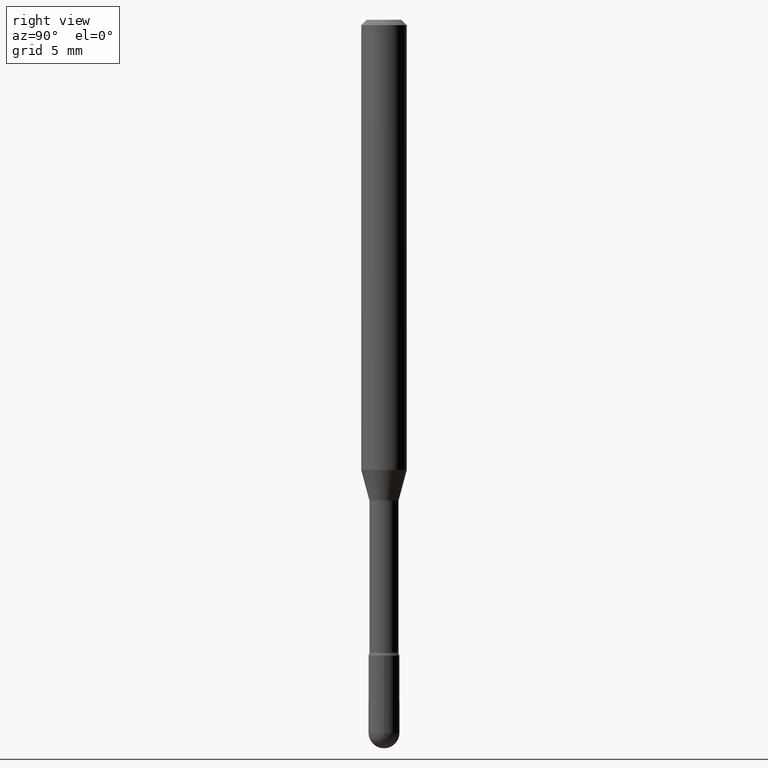
[diagram: clean part render]
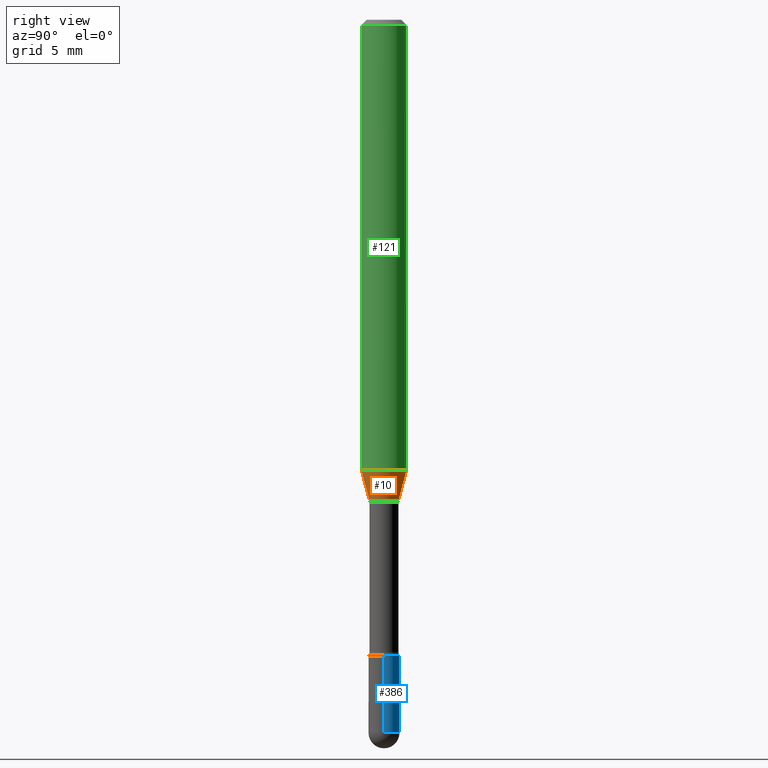
[diagram: same view with three faces highlighted in distinct colors, each labeled with its STEP entity id]
A machine part, right view with three faces highlighted in distinct colors.
Their STEP definitions:

[orange] entity #10 — the highlighted conical surface has half-angle 15 deg.
#10 = ADVANCED_FACE ( 'NONE', ( #530 ), #302, .T. ) ;
#24 = ORIENTED_EDGE ( 'NONE', *, *, #28, .T. ) ;
#28 = EDGE_CURVE ( 'NONE', #310, #143, #104, .T. ) ;
#58 = ORIENTED_EDGE ( 'NONE', *, *, #239, .T. ) ;
#60 = DIRECTION ( 'NONE',  ( -6.982962677686265922E-15, -1.000000000000000000, 4.370956789862821150E-15 ) ) ;
#75 = VERTEX_POINT ( 'NONE', #395 ) ;
#104 = LINE ( 'NONE', #314, #514 ) ;
#107 = LINE ( 'NONE', #369, #120 ) ;
#109 = AXIS2_PLACEMENT_3D ( 'NONE', #482, #231, #480 ) ;
#110 = ORIENTED_EDGE ( 'NONE', *, *, #162, .F. ) ;
#120 = VECTOR ( 'NONE', #225, 39.37007874015748143 ) ;
#143 = VERTEX_POINT ( 'NONE', #282 ) ;
#162 = EDGE_CURVE ( 'NONE', #242, #143, #558, .T. ) ;
#167 = AXIS2_PLACEMENT_3D ( 'NONE', #279, #543, #540 ) ;
#171 = EDGE_LOOP ( 'NONE', ( #58, #24, #110, #212 ) ) ;
#203 = DIRECTION ( 'NONE',  ( -2.445482093652650553E-29, 3.491462310433390042E-15, 1.000000000000000000 ) ) ;
#207 = CARTESIAN_POINT ( 'NONE',  ( 3.022230103443863054E-29, -4.314896652492206227E-15, -1.235842254289322151 ) ) ;
#212 = ORIENTED_EDGE ( 'NONE', *, *, #462, .F. ) ;
#225 = DIRECTION ( 'NONE',  ( -1.807323732225327773E-15, -0.2588190451025178529, 0.9659258262890690894 ) ) ;
#231 = DIRECTION ( 'NONE',  ( -2.445482093652650553E-29, 3.491462310433390042E-15, 1.000000000000000000 ) ) ;
#239 = EDGE_CURVE ( 'NONE', #75, #310, #407, .T. ) ;
#242 = VERTEX_POINT ( 'NONE', #330 ) ;
#279 = CARTESIAN_POINT ( 'NONE',  ( 3.223371610898601167E-29, -4.602070291655120308E-15, -1.318092501787273330 ) ) ;
#282 = CARTESIAN_POINT ( 'NONE',  ( 4.440892098500929873E-16, 0.06249999999999572564, -1.235842254289322373 ) ) ;
#302 = CONICAL_SURFACE ( 'NONE', #109, 0.04046111260566399165, 0.2617993877991499074 ) ;
#310 = VERTEX_POINT ( 'NONE', #339 ) ;
#314 = CARTESIAN_POINT ( 'NONE',  ( 2.874934964272918294E-16, 0.04046111260565939116, -1.318092501787273552 ) ) ;
#330 = CARTESIAN_POINT ( 'NONE',  ( -4.364351673553611504E-16, -0.06250000000000427436, -1.235842254289321929 ) ) ;
#339 = CARTESIAN_POINT ( 'NONE',  ( 3.657913531386922851E-16, 0.04046111260565939116, -1.318092501787273552 ) ) ;
#369 = CARTESIAN_POINT ( 'NONE',  ( -2.825384392229807714E-16, -0.04046111260566859213, -1.318092501787272885 ) ) ;
#395 = CARTESIAN_POINT ( 'NONE',  ( -2.825384392229807714E-16, -0.04046111260566859213, -1.318092501787272885 ) ) ;
#407 = CIRCLE ( 'NONE', #167, 0.04046111260566399165 ) ;
#462 = EDGE_CURVE ( 'NONE', #75, #242, #107, .T. ) ;
#480 = DIRECTION ( 'NONE',  ( -6.982962677686265922E-15, -1.000000000000000000, 6.751786635945948968E-15 ) ) ;
#482 = CARTESIAN_POINT ( 'NONE',  ( 3.223371610898601167E-29, -4.602070291655120308E-15, -1.318092501787273330 ) ) ;
#485 = DIRECTION ( 'NONE',  ( 1.839019923739597554E-15, 0.2588190451025245697, 0.9659258262890670910 ) ) ;
#486 = AXIS2_PLACEMENT_3D ( 'NONE', #207, #203, #60 ) ;
#514 = VECTOR ( 'NONE', #485, 39.37007874015748854 ) ;
#530 = FACE_OUTER_BOUND ( 'NONE', #171, .T. ) ;
#540 = DIRECTION ( 'NONE',  ( -6.982962677686265922E-15, -1.000000000000000000, 6.751786635945948968E-15 ) ) ;
#543 = DIRECTION ( 'NONE',  ( -2.445482093652650553E-29, 3.491462310433390042E-15, 1.000000000000000000 ) ) ;
#558 = CIRCLE ( 'NONE', #486, 0.06250000000000000000 ) ;

[blue] entity #386 — the highlighted cylindrical surface (edge-blend (fillet) strip) has radius 1.0795 mm, axis along (-0, 0, 1).
#16 = VERTEX_POINT ( 'NONE', #353 ) ;
#29 = EDGE_LOOP ( 'NONE', ( #255, #82, #39, #333, #557 ) ) ;
#39 = ORIENTED_EDGE ( 'NONE', *, *, #92, .F. ) ;
#72 = CARTESIAN_POINT ( 'NONE',  ( 2.967759138017140317E-16, 0.04249999999999314049, -1.957500000000000462 ) ) ;
#82 = ORIENTED_EDGE ( 'NONE', *, *, #206, .T. ) ;
#92 = EDGE_CURVE ( 'NONE', #201, #287, #415, .T. ) ;
#115 = DIRECTION ( 'NONE',  ( -2.445468806185136877E-29, 3.491481338843145188E-15, 1.000000000000000000 ) ) ;
#118 = CARTESIAN_POINT ( 'NONE',  ( 0.04249999999999999611, -6.389410850082955497E-15, -1.745000000000000107 ) ) ;
#131 = CARTESIAN_POINT ( 'NONE',  ( 0.000000000000000000, 0.000000000000000000, 0.000000000000000000 ) ) ;
#188 = EDGE_CURVE ( 'NONE', #238, #201, #544, .T. ) ;
#201 = VERTEX_POINT ( 'NONE', #118 ) ;
#206 = EDGE_CURVE ( 'NONE', #16, #287, #286, .T. ) ;
#238 = VERTEX_POINT ( 'NONE', #535 ) ;
#251 = CARTESIAN_POINT ( 'NONE',  ( -0.04249999999999999611, -6.161624165835330496E-15, -1.745000000000000107 ) ) ;
#252 = FACE_OUTER_BOUND ( 'NONE', #29, .T. ) ;
#254 = DIRECTION ( 'NONE',  ( -2.445468806185136597E-29, 3.491481338843145583E-15, 1.000000000000000000 ) ) ;
#255 = ORIENTED_EDGE ( 'NONE', *, *, #325, .T. ) ;
#286 = LINE ( 'NONE', #498, #290 ) ;
#287 = VERTEX_POINT ( 'NONE', #251 ) ;
#288 = CARTESIAN_POINT ( 'NONE',  ( 0.04250000000000000999, -2.967759138016664042E-16, 2.072375129713273202E-30 ) ) ;
#290 = VECTOR ( 'NONE', #115, 39.37007874015748143 ) ;
#297 = CARTESIAN_POINT ( 'NONE',  ( 4.787005188107404686E-29, -6.834574720785457840E-15, -1.957500000000000018 ) ) ;
#304 = DIRECTION ( 'NONE',  ( 1.000000000000000000, -6.982962677686266711E-15, 4.876176775795935793E-29 ) ) ;
#309 = DIRECTION ( 'NONE',  ( -2.445468806185136597E-29, 3.491481338843145583E-15, 1.000000000000000000 ) ) ;
#312 = CIRCLE ( 'NONE', #329, 0.04250000000000000999 ) ;
#325 = EDGE_CURVE ( 'NONE', #413, #16, #312, .T. ) ;
#329 = AXIS2_PLACEMENT_3D ( 'NONE', #297, #377, #422 ) ;
#333 = ORIENTED_EDGE ( 'NONE', *, *, #188, .F. ) ;
#336 = CYLINDRICAL_SURFACE ( 'NONE', #496, 0.04250000000000000999 ) ;
#353 = CARTESIAN_POINT ( 'NONE',  ( -0.04250000000000000999, -6.161624165835330496E-15, -1.957500000000000018 ) ) ;
#354 = CARTESIAN_POINT ( 'NONE',  ( 4.787005188107404686E-29, -6.834574720785457840E-15, -1.957500000000000018 ) ) ;
#355 = CARTESIAN_POINT ( 'NONE',  ( 4.267343066793063832E-29, -6.092634936281288846E-15, -1.745000000000000107 ) ) ;
#366 = DIRECTION ( 'NONE',  ( -2.445468806185136877E-29, 3.491481338843145188E-15, 1.000000000000000000 ) ) ;
#377 = DIRECTION ( 'NONE',  ( -2.445468806185136597E-29, 3.491481338843145583E-15, 1.000000000000000000 ) ) ;
#380 = VECTOR ( 'NONE', #366, 39.37007874015748143 ) ;
#386 = ADVANCED_FACE ( 'NONE', ( #252 ), #336, .T. ) ;
#397 = DIRECTION ( 'NONE',  ( 1.000000000000000000, -6.982962677686276177E-15, 0.000000000000000000 ) ) ;
#404 = DIRECTION ( 'NONE',  ( -2.445468806185136597E-29, 3.491481338843145583E-15, 1.000000000000000000 ) ) ;
#413 = VERTEX_POINT ( 'NONE', #72 ) ;
#415 = CIRCLE ( 'NONE', #436, 0.04249999999999999611 ) ;
#422 = DIRECTION ( 'NONE',  ( 1.000000000000000000, -6.982962677686273810E-15, 0.000000000000000000 ) ) ;
#436 = AXIS2_PLACEMENT_3D ( 'NONE', #355, #404, #397 ) ;
#472 = CIRCLE ( 'NONE', #481, 0.04250000000000000999 ) ;
#481 = AXIS2_PLACEMENT_3D ( 'NONE', #354, #309, #524 ) ;
#496 = AXIS2_PLACEMENT_3D ( 'NONE', #131, #254, #304 ) ;
#498 = CARTESIAN_POINT ( 'NONE',  ( -0.04250000000000000999, 3.019806626980426500E-16, -2.090547413358335560E-30 ) ) ;
#524 = DIRECTION ( 'NONE',  ( 1.000000000000000000, -6.982962677686273810E-15, 0.000000000000000000 ) ) ;
#527 = EDGE_CURVE ( 'NONE', #238, #413, #472, .T. ) ;
#535 = CARTESIAN_POINT ( 'NONE',  ( 0.04250000000000000999, -6.760380742335040388E-15, -1.957500000000000018 ) ) ;
#544 = LINE ( 'NONE', #288, #380 ) ;
#557 = ORIENTED_EDGE ( 'NONE', *, *, #527, .T. ) ;

[green] entity #121 — the highlighted cylindrical surface (edge-blend (fillet) strip) has radius 1.5875 mm, axis along (-0, 0, 1).
#9 = CARTESIAN_POINT ( 'NONE',  ( 4.440892098500625669E-16, 0.06250000000000000000, 2.598570044891592103E-16 ) ) ;
#19 = DIRECTION ( 'NONE',  ( -2.445482093652650553E-29, 3.491462310433390042E-15, 1.000000000000000000 ) ) ;
#43 = ORIENTED_EDGE ( 'NONE', *, *, #162, .T. ) ;
#55 = LINE ( 'NONE', #9, #373 ) ;
#60 = DIRECTION ( 'NONE',  ( -6.982962677686265922E-15, -1.000000000000000000, 4.370956789862821150E-15 ) ) ;
#65 = ORIENTED_EDGE ( 'NONE', *, *, #102, .T. ) ;
#102 = EDGE_CURVE ( 'NONE', #143, #264, #55, .T. ) ;
#121 = ADVANCED_FACE ( 'NONE', ( #161 ), #492, .T. ) ;
#136 = CARTESIAN_POINT ( 'NONE',  ( -4.364351673553912750E-16, -0.06250000000000005551, -0.01499999999999986587 ) ) ;
#143 = VERTEX_POINT ( 'NONE', #282 ) ;
#149 = DIRECTION ( 'NONE',  ( -2.445482093652650834E-29, 3.491462310433390042E-15, 1.000000000000000000 ) ) ;
#161 = FACE_OUTER_BOUND ( 'NONE', #163, .T. ) ;
#162 = EDGE_CURVE ( 'NONE', #242, #143, #558, .T. ) ;
#163 = EDGE_LOOP ( 'NONE', ( #43, #65, #384, #173 ) ) ;
#173 = ORIENTED_EDGE ( 'NONE', *, *, #362, .F. ) ;
#203 = DIRECTION ( 'NONE',  ( -2.445482093652650553E-29, 3.491462310433390042E-15, 1.000000000000000000 ) ) ;
#207 = CARTESIAN_POINT ( 'NONE',  ( 3.022230103443863054E-29, -4.314896652492206227E-15, -1.235842254289322151 ) ) ;
#236 = CARTESIAN_POINT ( 'NONE',  ( -1.169113584055446105E-44, 1.669184350826100908E-30, 4.780733988912460139E-16 ) ) ;
#242 = VERTEX_POINT ( 'NONE', #330 ) ;
#264 = VERTEX_POINT ( 'NONE', #497 ) ;
#282 = CARTESIAN_POINT ( 'NONE',  ( 4.440892098500929873E-16, 0.06249999999999572564, -1.235842254289322373 ) ) ;
#300 = DIRECTION ( 'NONE',  ( -2.445482093652650553E-29, 3.491462310433390042E-15, 1.000000000000000000 ) ) ;
#330 = CARTESIAN_POINT ( 'NONE',  ( -4.364351673553611504E-16, -0.06250000000000427436, -1.235842254289321929 ) ) ;
#345 = EDGE_CURVE ( 'NONE', #549, #264, #559, .T. ) ;
#362 = EDGE_CURVE ( 'NONE', #242, #549, #507, .T. ) ;
#373 = VECTOR ( 'NONE', #149, 39.37007874015748143 ) ;
#381 = DIRECTION ( 'NONE',  ( -6.982962677686265922E-15, -1.000000000000000000, 3.483106191921935554E-15 ) ) ;
#384 = ORIENTED_EDGE ( 'NONE', *, *, #345, .F. ) ;
#411 = DIRECTION ( 'NONE',  ( -6.982962677686265922E-15, -1.000000000000000000, 3.491462310433390436E-15 ) ) ;
#431 = CARTESIAN_POINT ( 'NONE',  ( -4.364351673553916201E-16, -0.06250000000000000000, 6.962897932933330148E-16 ) ) ;
#444 = AXIS2_PLACEMENT_3D ( 'NONE', #518, #300, #381 ) ;
#486 = AXIS2_PLACEMENT_3D ( 'NONE', #207, #203, #60 ) ;
#492 = CYLINDRICAL_SURFACE ( 'NONE', #494, 0.06250000000000000000 ) ;
#494 = AXIS2_PLACEMENT_3D ( 'NONE', #236, #19, #411 ) ;
#497 = CARTESIAN_POINT ( 'NONE',  ( 4.440892098500929873E-16, 0.06249999999999995143, -0.01500000000000030129 ) ) ;
#507 = LINE ( 'NONE', #431, #534 ) ;
#518 = CARTESIAN_POINT ( 'NONE',  ( 3.668223140478995781E-31, -5.237193465650114152E-17, -0.01500000000000008271 ) ) ;
#534 = VECTOR ( 'NONE', #548, 39.37007874015748143 ) ;
#548 = DIRECTION ( 'NONE',  ( -2.445482093652650834E-29, 3.491462310433390042E-15, 1.000000000000000000 ) ) ;
#549 = VERTEX_POINT ( 'NONE', #136 ) ;
#558 = CIRCLE ( 'NONE', #486, 0.06250000000000000000 ) ;
#559 = CIRCLE ( 'NONE', #444, 0.06250000000000000000 ) ;